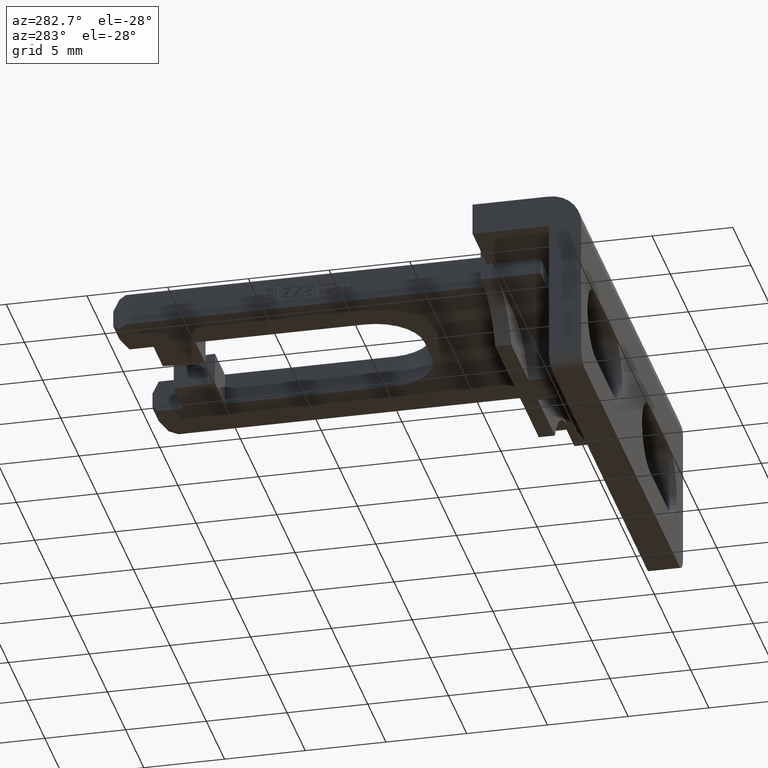
[diagram: clean part render]
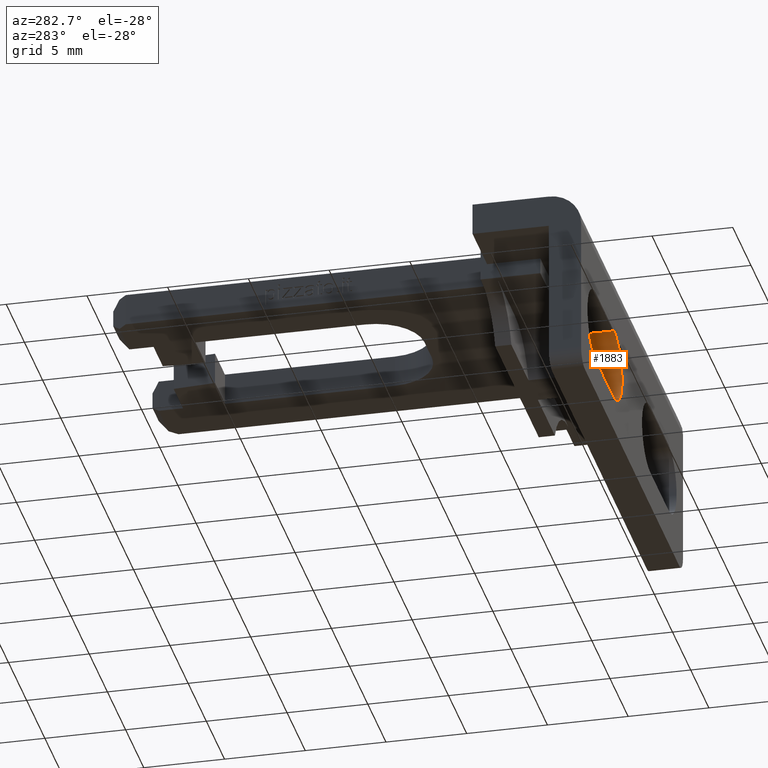
[diagram: same view with one face highlighted and labeled with its STEP entity id]
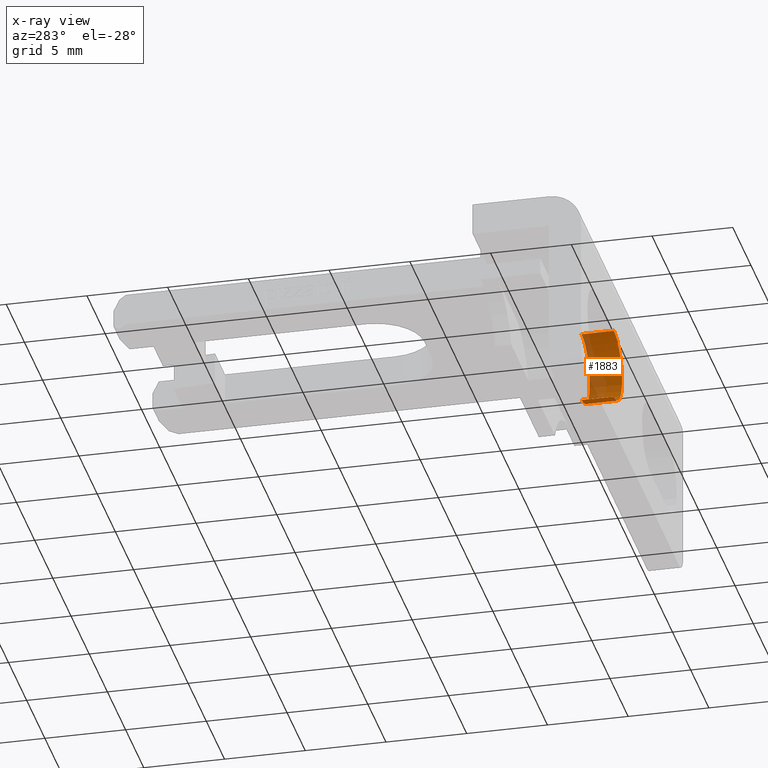
[diagram: x-ray of the same camera — body ghosted, the highlighted face saturated]
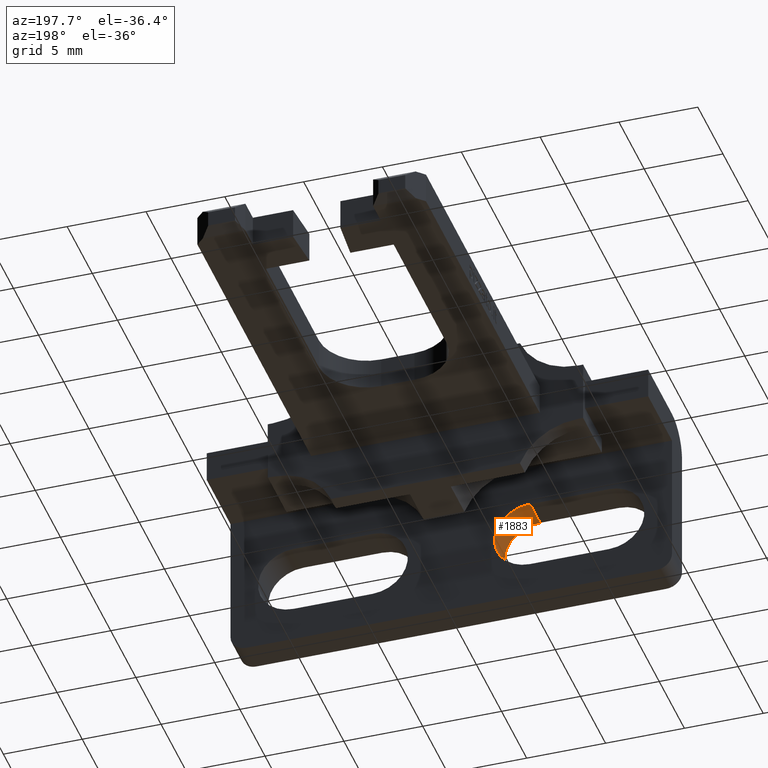
[diagram: same view with one face highlighted and labeled with its STEP entity id]
A machine part, auxiliary view. The second image highlights one B-rep face of the part: STEP entity #1883.
The next image is the same camera in x-ray: the body ghosted, the highlighted face saturated — about 32% of this face is hidden behind the body in this view.
A second angle (auxiliary view) of the same face is appended — the face is thin or edge-on in the first view.
In plain terms, the highlighted cylindrical surface (partial cylindrical patch) has radius 2.25 mm, axis along (-0, 1, -0).
Its self-contained STEP definition (entity closure, byte-faithful):
#1818=CARTESIAN_POINT('',(-4.999999999999986,-2.018132E-014,6.750000000000000));
#1819=VERTEX_POINT('',#1818);
#1826=CARTESIAN_POINT('',(-5.0,-2.000000000000020,6.749999999999989));
#1827=VERTEX_POINT('',#1826);
#1828=CARTESIAN_POINT('',(-4.999999999999986,-2.000000000000020,6.749999999999989));
#1829=DIRECTION('',(0.0,1.0,0.0));
#1830=VECTOR('',#1829,2.000000000000002);
#1831=LINE('',#1828,#1830);
#1832=EDGE_CURVE('',#1827,#1819,#1831,.T.);
#1851=CARTESIAN_POINT('',(-4.999999999999986,-2.000000010000027,4.499999999999996));
#1852=DIRECTION('',(-5.551115E-017,1.0,-6.123234E-017));
#1853=DIRECTION('',(-1.0,-5.551115E-017,3.399078E-033));
#1854=AXIS2_PLACEMENT_3D('',#1851,#1852,#1853);
#1855=CYLINDRICAL_SURFACE('',#1854,2.249999999999997);
#1856=CARTESIAN_POINT('',(-4.999999999999986,-6.246010E-015,2.250000000000007));
#1857=VERTEX_POINT('',#1856);
#1858=CARTESIAN_POINT('',(-4.999999999999986,-1.321366E-014,4.500000000000004));
#1859=DIRECTION('',(-5.551115E-017,1.0,-6.123234E-017));
#1860=DIRECTION('',(0.0,-6.123234E-017,-1.0));
#1861=AXIS2_PLACEMENT_3D('',#1858,#1859,#1860);
#1862=CIRCLE('',#1861,2.249999999999997);
#1863=EDGE_CURVE('',#1819,#1857,#1862,.T.);
#1864=ORIENTED_EDGE('',*,*,#1863,.T.);
#1865=CARTESIAN_POINT('',(-4.999999999999986,-2.000000000000006,2.250000000000000));
#1866=VERTEX_POINT('',#1865);
#1867=CARTESIAN_POINT('',(-4.999999999999986,-2.000000000000006,2.250000000000000));
#1868=DIRECTION('',(0.0,1.0,0.0));
#1869=VECTOR('',#1868,2.0);
#1870=LINE('',#1867,#1869);
#1871=EDGE_CURVE('',#1866,#1857,#1870,.T.);
#1872=ORIENTED_EDGE('',*,*,#1871,.F.);
#1873=CARTESIAN_POINT('',(-4.999999999999986,-2.000000000000013,4.500000000000000));
#1874=DIRECTION('',(-5.551115E-017,1.0,-6.123234E-017));
#1875=DIRECTION('',(0.0,-6.123234E-017,-1.0));
#1876=AXIS2_PLACEMENT_3D('',#1873,#1874,#1875);
#1877=CIRCLE('',#1876,2.249999999999997);
#1878=EDGE_CURVE('',#1827,#1866,#1877,.T.);
#1879=ORIENTED_EDGE('',*,*,#1878,.F.);
#1880=ORIENTED_EDGE('',*,*,#1832,.T.);
#1881=EDGE_LOOP('',(#1864,#1872,#1879,#1880));
#1882=FACE_OUTER_BOUND('',#1881,.T.);
#1883=ADVANCED_FACE('',(#1882),#1855,.F.);